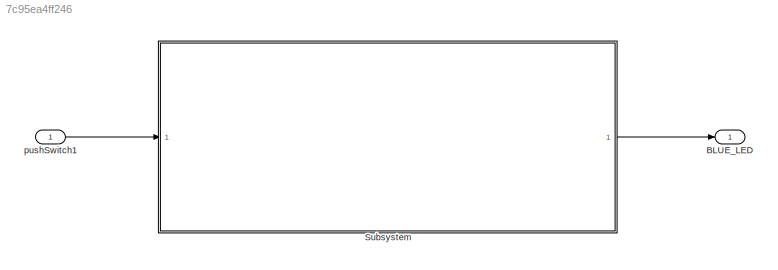
MODEL slx_7c95ea4ff246
KIND model
CONFIG AbsTol = auto
CONFIG EnableMultiTasking = off
CONFIG FixedStep = Ts
CONFIG InitFcn = para
CONFIG MaxStep = auto
CONFIG MinStep = auto
CONFIG RelTol = 1e-3
CONFIG SampleTimeConstraint = Unconstrained
CONFIG SolverName = FixedStepDiscrete
CONFIG StartTime = 0.0
CONFIG StopTime = inf
BLOCK [Outport] BLUE_LED
  OutDataTypeStr = uint16
  OutMax = 50000
  OutMin = 0
  SignalName = BLUE_LED
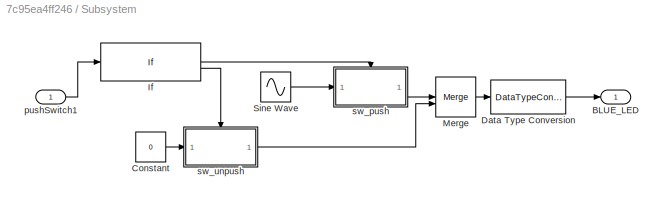
BLOCK [SubSystem] Subsystem
BLOCK [Outport] Subsystem/BLUE_LED
BLOCK [Constant] Subsystem/Constant
  Value = 0
BLOCK [DataTypeConversion] Subsystem/Data Type Conversion
  OutDataTypeStr = uint16
  RndMeth = Floor
  SaturateOnIntegerOverflow = off
BLOCK [If] Subsystem/If
  IfExpression = u1 == 0
BLOCK [Merge] Subsystem/Merge
BLOCK [Sin] Subsystem/Sine Wave
  Amplitude = 25000
  Bias = 25000
  SampleTime = Ts
  Samples = 300
  SineType = Sample based
BLOCK [Inport] Subsystem/pushSwitch1
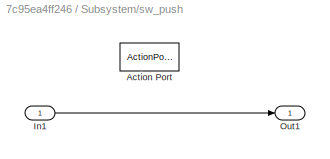
BLOCK [SubSystem] Subsystem/sw_push 
  TreatAsAtomicUnit = on
BLOCK [ActionPort] Subsystem/sw_push /Action Port
  ActionPortLabel = if(u1 == 0)
BLOCK [Inport] Subsystem/sw_push /In1
BLOCK [Outport] Subsystem/sw_push /Out1
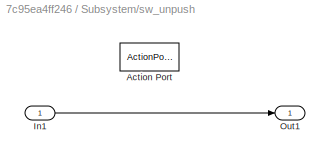
BLOCK [SubSystem] Subsystem/sw_unpush
  TreatAsAtomicUnit = on
BLOCK [ActionPort] Subsystem/sw_unpush/Action Port
  ActionPortLabel = else
BLOCK [Inport] Subsystem/sw_unpush/In1
BLOCK [Outport] Subsystem/sw_unpush/Out1
BLOCK [Inport] pushSwitch1
  OutDataTypeStr = boolean
LINE Subsystem/Constant:1 -> Subsystem/sw_unpush:1
LINE Subsystem/Data Type Conversion:1 -> Subsystem/BLUE_LED:1
LINE Subsystem/If:1 -> Subsystem/sw_push :ifaction
LINE Subsystem/If:2 -> Subsystem/sw_unpush:ifaction
LINE Subsystem/Merge:1 -> Subsystem/Data Type Conversion:1
LINE Subsystem/Sine Wave:1 -> Subsystem/sw_push :1
LINE Subsystem/pushSwitch1:1 -> Subsystem/If:1
LINE Subsystem/sw_push /In1:1 -> Subsystem/sw_push /Out1:1
LINE Subsystem/sw_push :1 -> Subsystem/Merge:1
LINE Subsystem/sw_unpush/In1:1 -> Subsystem/sw_unpush/Out1:1
LINE Subsystem/sw_unpush:1 -> Subsystem/Merge:2
LINE Subsystem:1 -> BLUE_LED:1
LINE pushSwitch1:1 -> Subsystem:1
